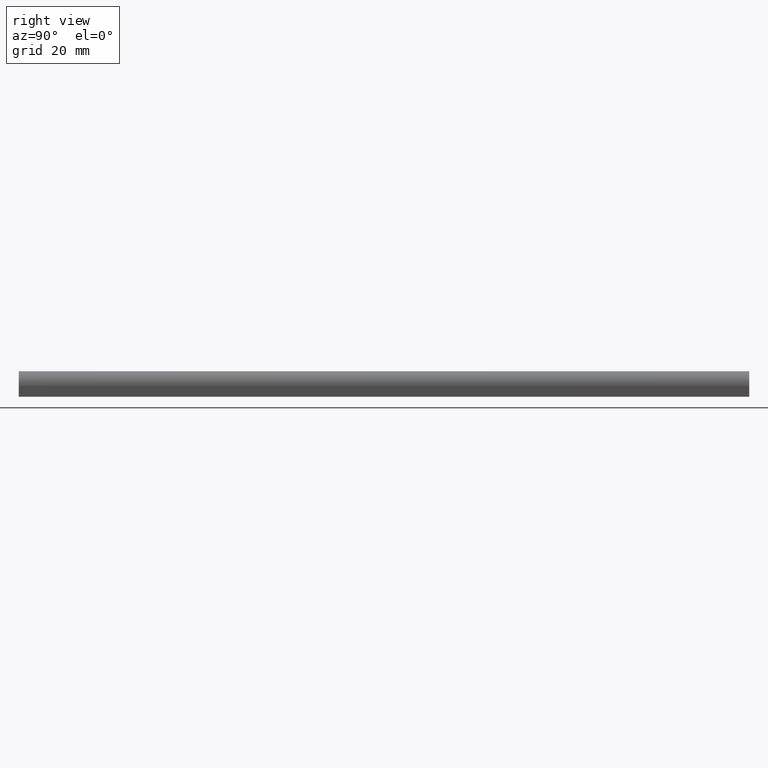
[diagram: clean part render]
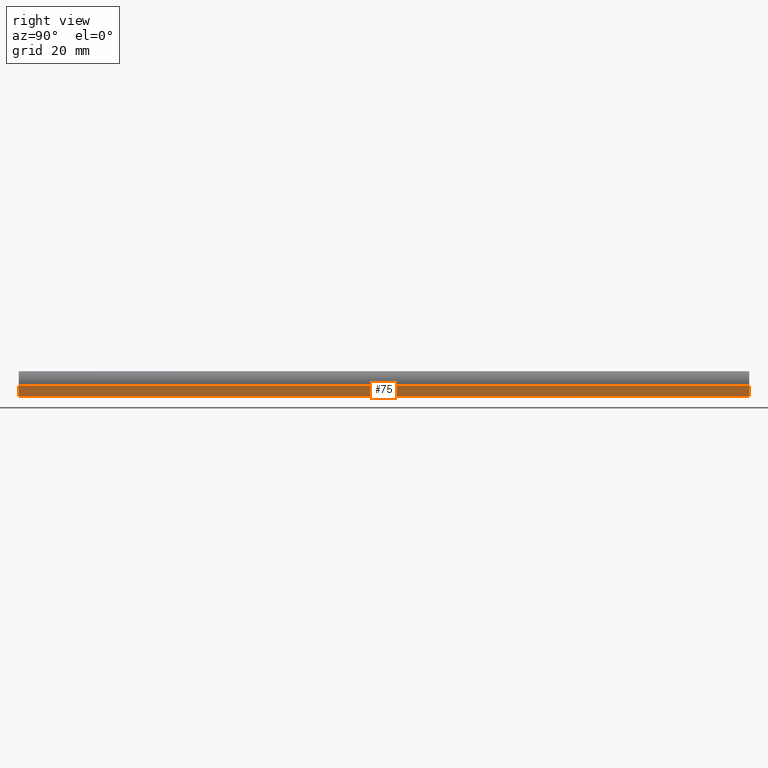
[diagram: same view with one face highlighted and labeled with its STEP entity id]
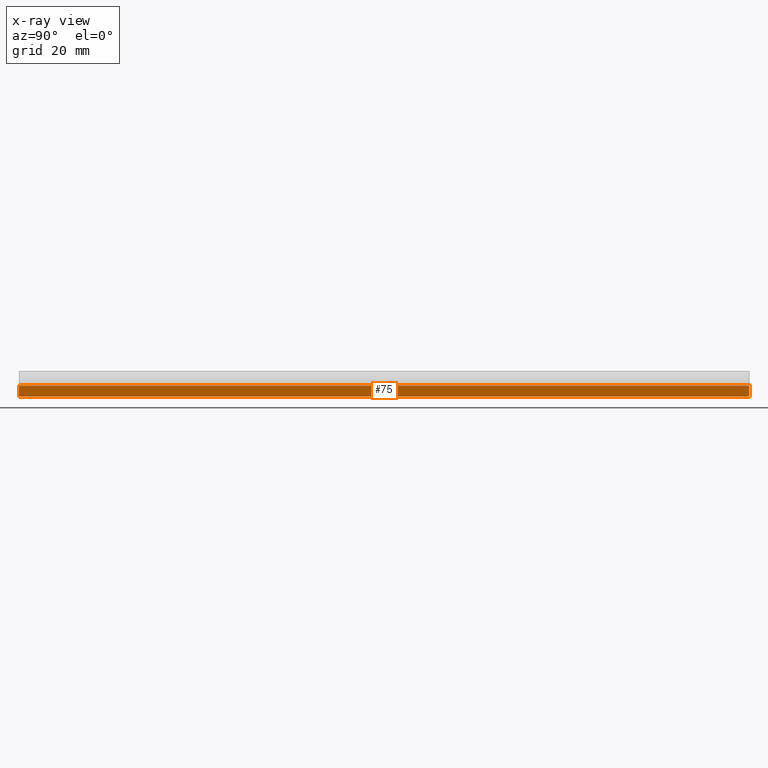
[diagram: x-ray of the same camera — body ghosted, the highlighted face saturated]
A machine part, right view. The second image highlights one B-rep face of the part: STEP entity #75.
The next image is the same camera in x-ray: the body ghosted, the highlighted face saturated — about 0% of this face is hidden behind the body in this view.
In plain terms, the highlighted planar face has unit normal (1, 0, 0).
Its self-contained STEP definition (entity closure, byte-faithful):
#1 = CARTESIAN_POINT ( 'NONE',  ( 4.000000000000000000, 1000.000000000000000, -0.5000000000000000000 ) ) ;
#3 = EDGE_LOOP ( 'NONE', ( #182, #129, #164, #157 ) ) ;
#13 = VERTEX_POINT ( 'NONE', #108 ) ;
#14 = DIRECTION ( 'NONE',  ( 0.0000000000000000000, 0.0000000000000000000, -1.000000000000000000 ) ) ;
#21 = VECTOR ( 'NONE', #55, 1000.000000000000000 ) ;
#28 = VERTEX_POINT ( 'NONE', #111 ) ;
#42 = FACE_OUTER_BOUND ( 'NONE', #3, .T. ) ;
#55 = DIRECTION ( 'NONE',  ( 0.0000000000000000000, -1.000000000000000000, 0.0000000000000000000 ) ) ;
#75 = ADVANCED_FACE ( 'NONE', ( #42 ), #106, .T. ) ;
#85 = VERTEX_POINT ( 'NONE', #128 ) ;
#88 = VECTOR ( 'NONE', #210, 1000.000000000000000 ) ;
#96 = LINE ( 'NONE', #104, #88 ) ;
#104 = CARTESIAN_POINT ( 'NONE',  ( 4.000000000000000000, 0.0000000000000000000, 0.0000000000000000000 ) ) ;
#106 = PLANE ( 'NONE',  #122 ) ;
#108 = CARTESIAN_POINT ( 'NONE',  ( 4.000000000000000000, 200.0000000000000000, -0.5000000000000000000 ) ) ;
#111 = CARTESIAN_POINT ( 'NONE',  ( 4.000000000000000000, 200.0000000000000000, -3.500000000000000000 ) ) ;
#120 = LINE ( 'NONE', #1, #21 ) ;
#122 = AXIS2_PLACEMENT_3D ( 'NONE', #214, #199, #14 ) ;
#125 = VECTOR ( 'NONE', #165, 1000.000000000000000 ) ;
#128 = CARTESIAN_POINT ( 'NONE',  ( 4.000000000000000000, 0.0000000000000000000, -0.5000000000000000000 ) ) ;
#129 = ORIENTED_EDGE ( 'NONE', *, *, #141, .F. ) ;
#141 = EDGE_CURVE ( 'NONE', #28, #240, #171, .T. ) ;
#142 = CARTESIAN_POINT ( 'NONE',  ( 4.000000000000000000, 0.0000000000000000000, -3.500000000000000000 ) ) ;
#152 = VECTOR ( 'NONE', #221, 1000.000000000000000 ) ;
#155 = EDGE_CURVE ( 'NONE', #13, #85, #120, .T. ) ;
#157 = ORIENTED_EDGE ( 'NONE', *, *, #155, .T. ) ;
#164 = ORIENTED_EDGE ( 'NONE', *, *, #167, .T. ) ;
#165 = DIRECTION ( 'NONE',  ( 0.0000000000000000000, -1.000000000000000000, 0.0000000000000000000 ) ) ;
#167 = EDGE_CURVE ( 'NONE', #28, #13, #201, .T. ) ;
#171 = LINE ( 'NONE', #224, #125 ) ;
#182 = ORIENTED_EDGE ( 'NONE', *, *, #205, .F. ) ;
#199 = DIRECTION ( 'NONE',  ( 1.000000000000000000, 0.0000000000000000000, 0.0000000000000000000 ) ) ;
#201 = LINE ( 'NONE', #206, #152 ) ;
#205 = EDGE_CURVE ( 'NONE', #240, #85, #96, .T. ) ;
#206 = CARTESIAN_POINT ( 'NONE',  ( 4.000000000000000000, 200.0000000000000000, 0.0000000000000000000 ) ) ;
#210 = DIRECTION ( 'NONE',  ( -0.0000000000000000000, -0.0000000000000000000, 1.000000000000000000 ) ) ;
#214 = CARTESIAN_POINT ( 'NONE',  ( 4.000000000000000000, 1000.000000000000000, -3.500000000000000000 ) ) ;
#221 = DIRECTION ( 'NONE',  ( -0.0000000000000000000, -0.0000000000000000000, 1.000000000000000000 ) ) ;
#224 = CARTESIAN_POINT ( 'NONE',  ( 4.000000000000000000, 1000.000000000000000, -3.500000000000000000 ) ) ;
#240 = VERTEX_POINT ( 'NONE', #142 ) ;